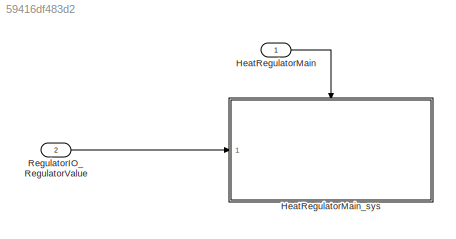
MODEL slx_59416df483d2
KIND model
CONFIG AbsTol = auto
CONFIG FixedStep = auto
CONFIG MaxStep = auto
CONFIG MinStep = auto
CONFIG RelTol = 1e-3
CONFIG SampleTimeConstraint = Unconstrained
CONFIG Solver = FixedStepDiscrete
CONFIG SolverMode = Auto
CONFIG SolverName = FixedStepDiscrete
CONFIG StartTime = 0.0
CONFIG StopTime = 10.0
BLOCK [Inport] HeatRegulatorMain
  IconDisplay = Port number
  OutputFunctionCall = on
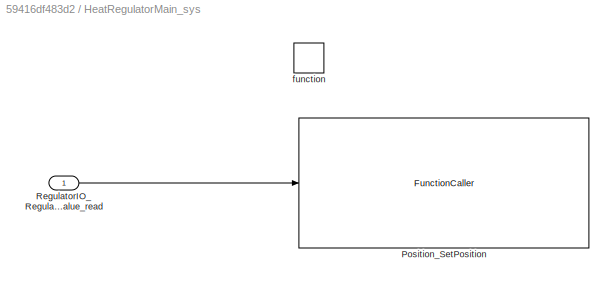
BLOCK [SubSystem] HeatRegulatorMain_sys
  Ports = [1, 0, 0, 1]
  RequestExecContextInheritance = off
BLOCK [FunctionCaller] HeatRegulatorMain_sys/Position_SetPosition
  FunctionPrototype = SeatHeatingControllerSetPosition(Position)
  InputArgumentSpecifications = P_Int32
  Ports = [1]
BLOCK [Inport] HeatRegulatorMain_sys/RegulatorIO_RegulatorValue_read
  IconDisplay = Port number
BLOCK [TriggerPort] HeatRegulatorMain_sys/function
  Ports = []
  StatesWhenEnabling = held
  TriggerType = function-call
BLOCK [Inport] RegulatorIO_RegulatorValue
  IconDisplay = Port number
  OutDataTypeStr = Int32
  Port = 2
  PortDimensions = 1
  SamplingMode = Sample based
  SignalType = real
LINE HeatRegulatorMain:1 -> HeatRegulatorMain_sys:trigger
LINE HeatRegulatorMain_sys/RegulatorIO_RegulatorValue_read:1 -> HeatRegulatorMain_sys/Position_SetPosition:1
LINE RegulatorIO_RegulatorValue:1 -> HeatRegulatorMain_sys:1
